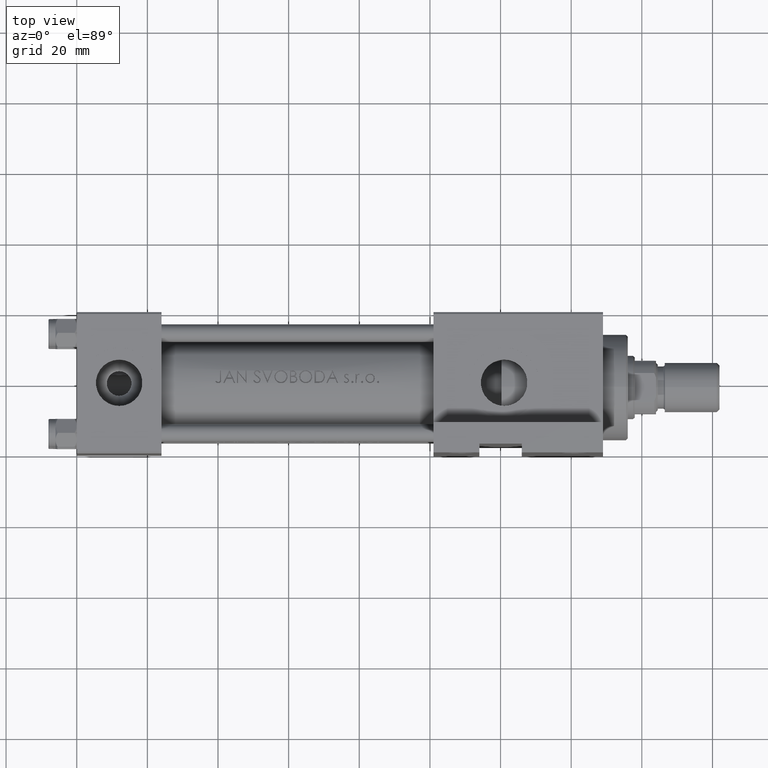
[diagram: clean part render]
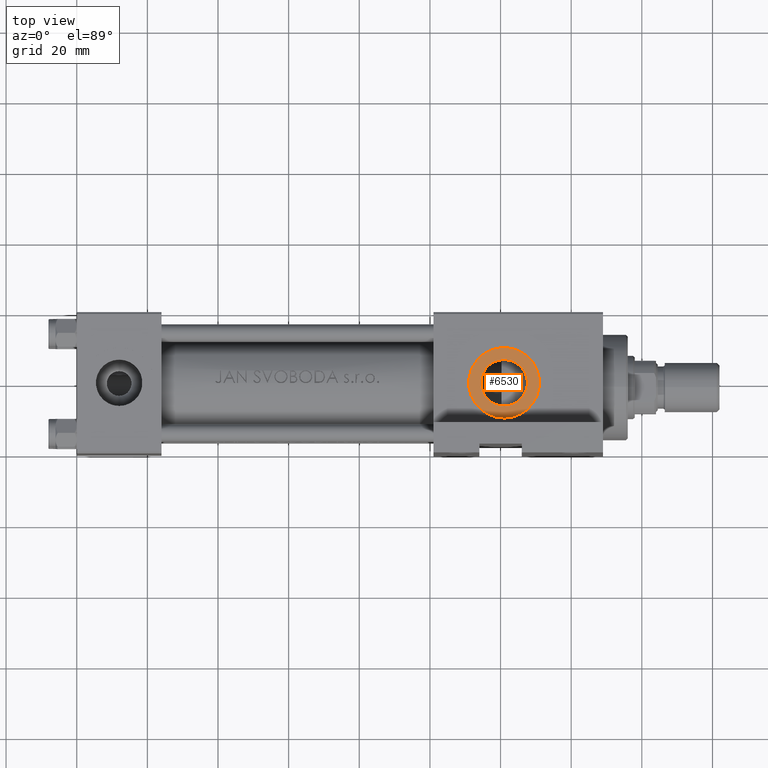
[diagram: same view with one face highlighted and labeled with its STEP entity id]
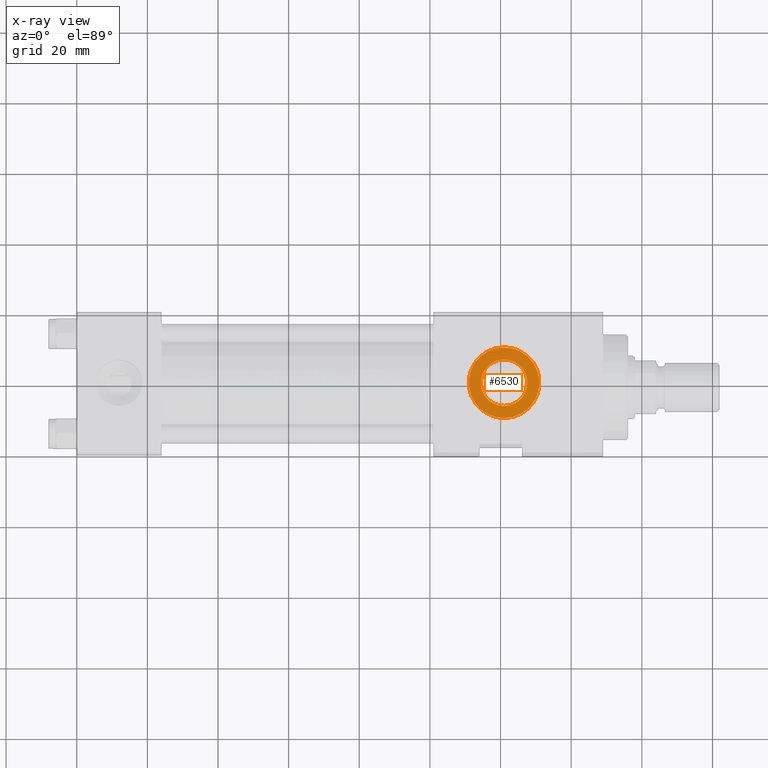
[diagram: x-ray of the same camera — body ghosted, the highlighted face saturated]
A machine part, top view. The second image highlights one B-rep face of the part: STEP entity #6530.
The next image is the same camera in x-ray: the body ghosted, the highlighted face saturated — about 0% of this face is hidden behind the body in this view.
In plain terms, the highlighted planar face has unit normal (0, -0, 1).
Its self-contained STEP definition (entity closure, byte-faithful):
#145 = DIRECTION ( 'NONE',  ( 0.000000000000000000, -1.000000000000000000, -8.673617379884036705E-17 ) ) ;
#5219 = DIRECTION ( 'NONE',  ( 0.000000000000000000, 0.000000000000000000, -1.000000000000000000 ) ) ;
#6530 = ADVANCED_FACE ( 'NONE', ( #19546, #34894 ), #46705, .T. ) ;
#8004 = CIRCLE ( 'NONE', #46576, 9.999999999999994671 ) ;
#8946 = AXIS2_PLACEMENT_3D ( 'NONE', #19295, #145, #46449 ) ;
#9083 = CARTESIAN_POINT ( 'NONE',  ( 121.0000000000000142, -19.80000000000000426, -1.717376241217039812E-15 ) ) ;
#11191 = ORIENTED_EDGE ( 'NONE', *, *, #35454, .F. ) ;
#11500 = CARTESIAN_POINT ( 'NONE',  ( 121.0000000000000142, -19.80000000000000426, -1.717376241217039812E-15 ) ) ;
#11626 = CIRCLE ( 'NONE', #19707, 6.580000000000000959 ) ;
#12095 = VERTEX_POINT ( 'NONE', #29602 ) ;
#13259 = CARTESIAN_POINT ( 'NONE',  ( 121.0000000000000142, -19.80000000000000426, -1.717376241217039812E-15 ) ) ;
#13320 = DIRECTION ( 'NONE',  ( 0.000000000000000000, -1.000000000000000000, -8.673617379884036705E-17 ) ) ;
#14998 = EDGE_CURVE ( 'NONE', #36247, #18847, #19564, .T. ) ;
#15117 = EDGE_LOOP ( 'NONE', ( #42533, #48093 ) ) ;
#17040 = DIRECTION ( 'NONE',  ( 0.000000000000000000, -1.000000000000000000, -8.673617379884036705E-17 ) ) ;
#17105 = CARTESIAN_POINT ( 'NONE',  ( 121.0000000000000142, -19.80000000000000426, -1.717376241217039812E-15 ) ) ;
#18315 = DIRECTION ( 'NONE',  ( 0.000000000000000000, 0.000000000000000000, -1.000000000000000000 ) ) ;
#18768 = EDGE_CURVE ( 'NONE', #47984, #12095, #32176, .T. ) ;
#18847 = VERTEX_POINT ( 'NONE', #26390 ) ;
#19295 = CARTESIAN_POINT ( 'NONE',  ( 121.0000000000000142, -19.80000000000000426, -1.717376241217039812E-15 ) ) ;
#19546 = FACE_BOUND ( 'NONE', #48687, .T. ) ;
#19564 = CIRCLE ( 'NONE', #34026, 6.580000000000000959 ) ;
#19707 = AXIS2_PLACEMENT_3D ( 'NONE', #13259, #17040, #5219 ) ;
#20038 = AXIS2_PLACEMENT_3D ( 'NONE', #17105, #13320, #28690 ) ;
#26390 = CARTESIAN_POINT ( 'NONE',  ( 121.0000000000000142, -19.80000000000000426, 6.579999999999999183 ) ) ;
#26872 = DIRECTION ( 'NONE',  ( 0.000000000000000000, -1.000000000000000000, -8.673617379884036705E-17 ) ) ;
#27962 = DIRECTION ( 'NONE',  ( 0.000000000000000000, 0.000000000000000000, -1.000000000000000000 ) ) ;
#28690 = DIRECTION ( 'NONE',  ( 0.000000000000000000, 0.000000000000000000, -1.000000000000000000 ) ) ;
#29602 = CARTESIAN_POINT ( 'NONE',  ( 121.0000000000000142, -19.80000000000000426, 9.999999999999992895 ) ) ;
#30251 = ORIENTED_EDGE ( 'NONE', *, *, #14998, .F. ) ;
#32176 = CIRCLE ( 'NONE', #20038, 9.999999999999994671 ) ;
#34026 = AXIS2_PLACEMENT_3D ( 'NONE', #9083, #47067, #27962 ) ;
#34894 = FACE_OUTER_BOUND ( 'NONE', #15117, .T. ) ;
#35454 = EDGE_CURVE ( 'NONE', #18847, #36247, #11626, .T. ) ;
#36247 = VERTEX_POINT ( 'NONE', #41914 ) ;
#41914 = CARTESIAN_POINT ( 'NONE',  ( 121.0000000000000142, -19.80000000000000426, -6.580000000000002736 ) ) ;
#42533 = ORIENTED_EDGE ( 'NONE', *, *, #18768, .T. ) ;
#43626 = CARTESIAN_POINT ( 'NONE',  ( 121.0000000000000142, -19.80000000000000426, -9.999999999999996447 ) ) ;
#46449 = DIRECTION ( 'NONE',  ( 0.000000000000000000, 8.673617379884036705E-17, -1.000000000000000000 ) ) ;
#46576 = AXIS2_PLACEMENT_3D ( 'NONE', #11500, #26872, #18315 ) ;
#46705 = PLANE ( 'NONE',  #8946 ) ;
#47067 = DIRECTION ( 'NONE',  ( 0.000000000000000000, -1.000000000000000000, -8.673617379884036705E-17 ) ) ;
#47984 = VERTEX_POINT ( 'NONE', #43626 ) ;
#48093 = ORIENTED_EDGE ( 'NONE', *, *, #49632, .T. ) ;
#48687 = EDGE_LOOP ( 'NONE', ( #30251, #11191 ) ) ;
#49632 = EDGE_CURVE ( 'NONE', #12095, #47984, #8004, .T. ) ;